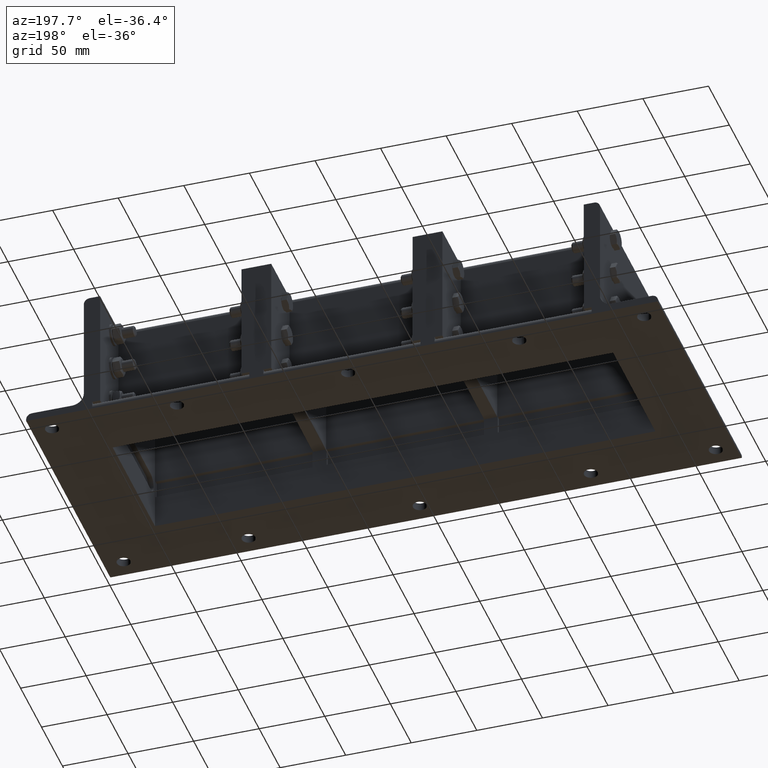
[diagram: clean part render]
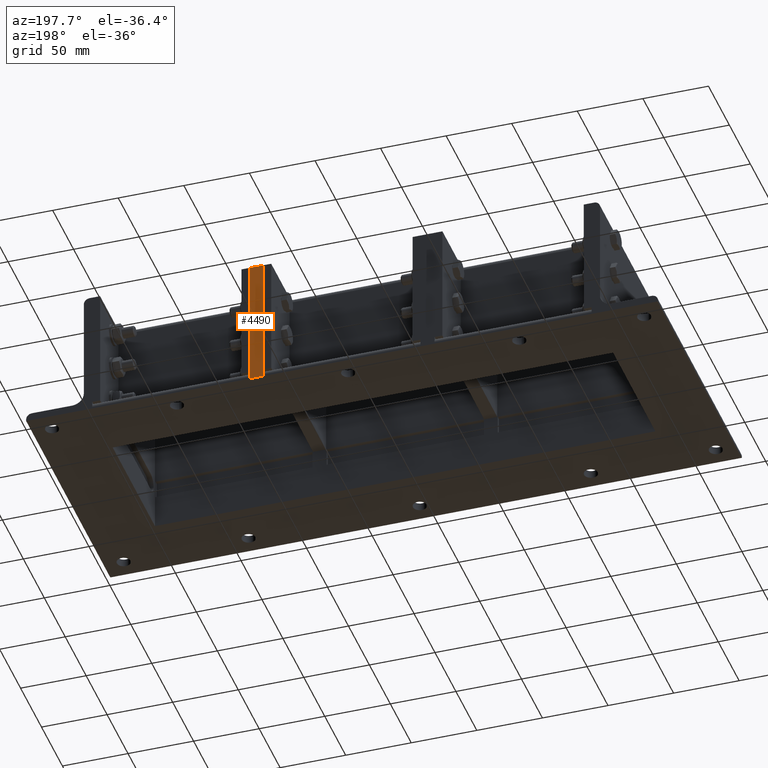
[diagram: same view with one face highlighted and labeled with its STEP entity id]
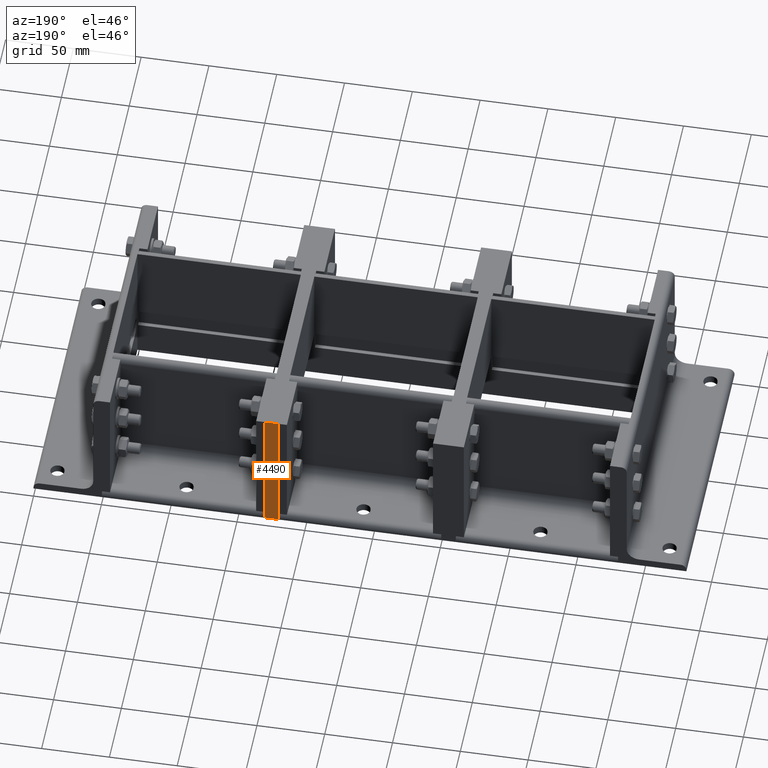
[diagram: same view with one face highlighted and labeled with its STEP entity id]
A machine part, auxiliary view. The second image highlights one B-rep face of the part: STEP entity #4490.
A second angle (auxiliary view) of the same face is appended — the face is thin or edge-on in the first view.
In plain terms, the highlighted planar face has unit normal (0, 1, -0).
Its self-contained STEP definition (entity closure, byte-faithful):
#4427=CARTESIAN_POINT('',(-100.5,0.0,60.000000000000028));
#4428=VERTEX_POINT('',#4427);
#4443=CARTESIAN_POINT('',(-100.5,10.0,60.000000000000028));
#4444=VERTEX_POINT('',#4443);
#4451=CARTESIAN_POINT('',(-100.5,0.0,60.000000000000028));
#4452=DIRECTION('',(0.0,1.0,0.0));
#4453=VECTOR('',#4452,10.0);
#4454=LINE('',#4451,#4453);
#4455=EDGE_CURVE('',#4428,#4444,#4454,.T.);
#4460=CARTESIAN_POINT('',(-100.5,0.0,-39.999999999999972));
#4461=DIRECTION('',(-1.0,0.0,0.0));
#4462=DIRECTION('',(0.0,0.0,1.0));
#4463=AXIS2_PLACEMENT_3D('',#4460,#4461,#4462);
#4464=PLANE('',#4463);
#4465=CARTESIAN_POINT('',(-100.5,0.0,-39.999999999999979));
#4466=VERTEX_POINT('',#4465);
#4467=CARTESIAN_POINT('',(-100.5,0.0,60.000000000000028));
#4468=DIRECTION('',(0.0,0.0,-1.0));
#4469=VECTOR('',#4468,100.0);
#4470=LINE('',#4467,#4469);
#4471=EDGE_CURVE('',#4428,#4466,#4470,.T.);
#4472=ORIENTED_EDGE('',*,*,#4471,.F.);
#4473=ORIENTED_EDGE('',*,*,#4455,.T.);
#4474=CARTESIAN_POINT('',(-100.5,10.0,-39.999999999999979));
#4475=VERTEX_POINT('',#4474);
#4476=CARTESIAN_POINT('',(-100.5,10.0,-39.999999999999972));
#4477=DIRECTION('',(0.0,0.0,1.0));
#4478=VECTOR('',#4477,100.0);
#4479=LINE('',#4476,#4478);
#4480=EDGE_CURVE('',#4475,#4444,#4479,.T.);
#4481=ORIENTED_EDGE('',*,*,#4480,.F.);
#4482=CARTESIAN_POINT('',(-100.5,0.0,-39.999999999999979));
#4483=DIRECTION('',(0.0,1.0,0.0));
#4484=VECTOR('',#4483,10.0);
#4485=LINE('',#4482,#4484);
#4486=EDGE_CURVE('',#4466,#4475,#4485,.T.);
#4487=ORIENTED_EDGE('',*,*,#4486,.F.);
#4488=EDGE_LOOP('',(#4472,#4473,#4481,#4487));
#4489=FACE_OUTER_BOUND('',#4488,.T.);
#4490=ADVANCED_FACE('',(#4489),#4464,.T.);